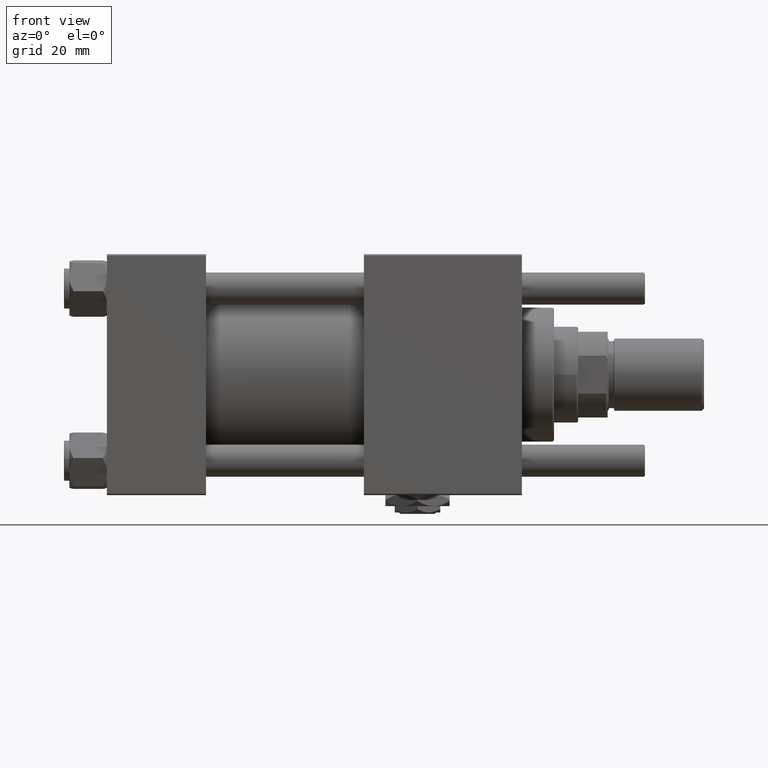
[diagram: clean part render]
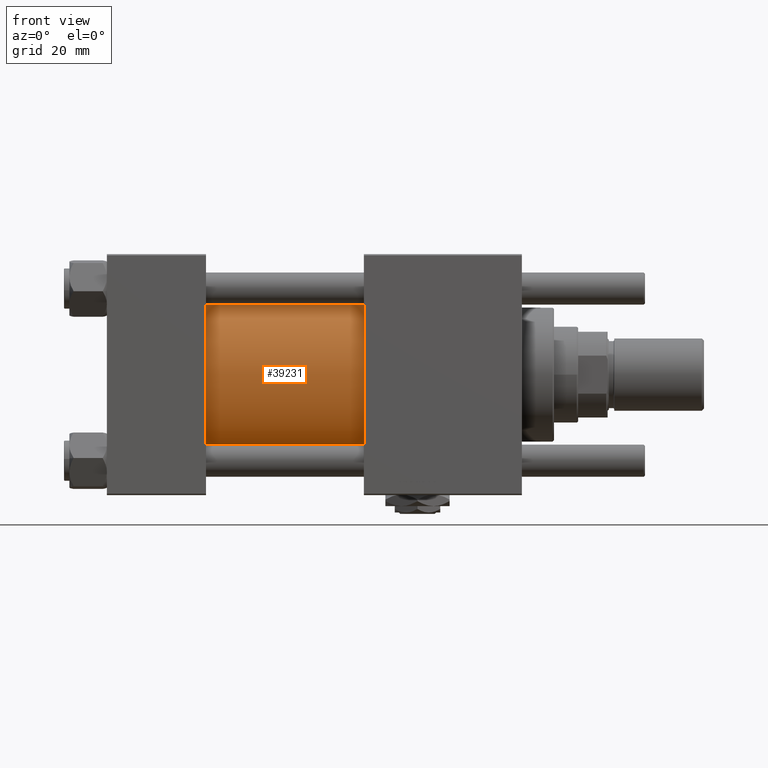
[diagram: same view with one face highlighted and labeled with its STEP entity id]
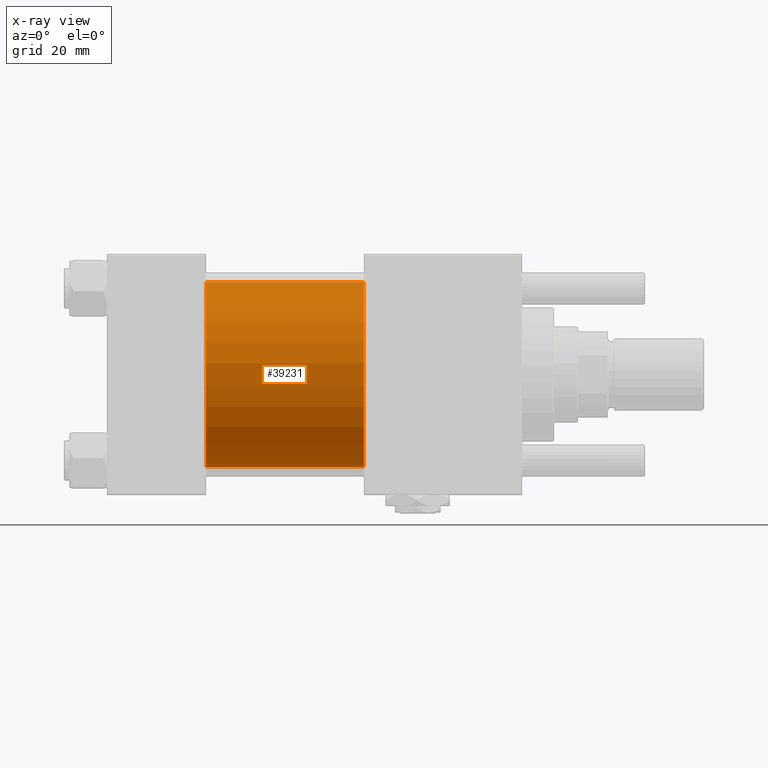
[diagram: x-ray of the same camera — body ghosted, the highlighted face saturated]
A machine part, front view. The second image highlights one B-rep face of the part: STEP entity #39231.
The next image is the same camera in x-ray: the body ghosted, the highlighted face saturated — about 3% of this face is hidden behind the body in this view.
In plain terms, the highlighted cylindrical surface (partial cylindrical patch) has radius 34.5 mm, axis along (-1, -0, -0).
Its self-contained STEP definition (entity closure, byte-faithful):
#359 = CARTESIAN_POINT ( 'NONE',  ( 96.00000000000000000, 1.622946243093158675E-15, -34.50000000000000000 ) ) ;
#611 = EDGE_CURVE ( 'NONE', #57978, #54522, #24128, .T. ) ;
#1622 = CIRCLE ( 'NONE', #35933, 34.50000000000000000 ) ;
#2655 = EDGE_LOOP ( 'NONE', ( #44652, #39168, #48136, #18923 ) ) ;
#6457 = CYLINDRICAL_SURFACE ( 'NONE', #18382, 34.50000000000000000 ) ;
#8016 = DIRECTION ( 'NONE',  ( 1.000000000000000000, -0.000000000000000000, 0.000000000000000000 ) ) ;
#9516 = CARTESIAN_POINT ( 'NONE',  ( 96.00000000000000000, 1.622946243093158675E-15, -34.50000000000000000 ) ) ;
#9990 = CARTESIAN_POINT ( 'NONE',  ( 96.00000000000000000, -2.602085213965210642E-15, 0.000000000000000000 ) ) ;
#12109 = FACE_OUTER_BOUND ( 'NONE', #2655, .T. ) ;
#16409 = EDGE_CURVE ( 'NONE', #40177, #37777, #1622, .T. ) ;
#16682 = VECTOR ( 'NONE', #37489, 1000.000000000000000 ) ;
#18382 = AXIS2_PLACEMENT_3D ( 'NONE', #42796, #43090, #57371 ) ;
#18923 = ORIENTED_EDGE ( 'NONE', *, *, #611, .T. ) ;
#19182 = VECTOR ( 'NONE', #42030, 1000.000000000000000 ) ;
#22843 = CARTESIAN_POINT ( 'NONE',  ( 37.00000000000000000, 1.622946243093158675E-15, -34.50000000000000000 ) ) ;
#23382 = DIRECTION ( 'NONE',  ( 1.000000000000000000, 0.000000000000000000, 0.000000000000000000 ) ) ;
#23680 = DIRECTION ( 'NONE',  ( 0.000000000000000000, 0.000000000000000000, -1.000000000000000000 ) ) ;
#23781 = LINE ( 'NONE', #9516, #16682 ) ;
#24128 = CIRCLE ( 'NONE', #28889, 34.50000000000000000 ) ;
#25029 = LINE ( 'NONE', #29506, #19182 ) ;
#28889 = AXIS2_PLACEMENT_3D ( 'NONE', #48817, #8016, #44355 ) ;
#29506 = CARTESIAN_POINT ( 'NONE',  ( 96.00000000000000000, -2.602085213965210642E-15, 34.50000000000000000 ) ) ;
#35096 = CARTESIAN_POINT ( 'NONE',  ( 96.00000000000000000, -2.602085213965210642E-15, 34.50000000000000000 ) ) ;
#35489 = EDGE_CURVE ( 'NONE', #40177, #57978, #25029, .T. ) ;
#35933 = AXIS2_PLACEMENT_3D ( 'NONE', #9990, #23382, #23680 ) ;
#37489 = DIRECTION ( 'NONE',  ( -1.000000000000000000, -0.000000000000000000, -0.000000000000000000 ) ) ;
#37777 = VERTEX_POINT ( 'NONE', #359 ) ;
#39168 = ORIENTED_EDGE ( 'NONE', *, *, #16409, .F. ) ;
#39231 = ADVANCED_FACE ( 'NONE', ( #12109 ), #6457, .T. ) ;
#40177 = VERTEX_POINT ( 'NONE', #35096 ) ;
#42030 = DIRECTION ( 'NONE',  ( -1.000000000000000000, -0.000000000000000000, -0.000000000000000000 ) ) ;
#42474 = CARTESIAN_POINT ( 'NONE',  ( 37.00000000000000000, -2.602085213965210642E-15, 34.50000000000000000 ) ) ;
#42796 = CARTESIAN_POINT ( 'NONE',  ( 96.00000000000000000, -2.602085213965210642E-15, 0.000000000000000000 ) ) ;
#43090 = DIRECTION ( 'NONE',  ( -1.000000000000000000, -0.000000000000000000, -0.000000000000000000 ) ) ;
#44355 = DIRECTION ( 'NONE',  ( 0.000000000000000000, 0.000000000000000000, 1.000000000000000000 ) ) ;
#44652 = ORIENTED_EDGE ( 'NONE', *, *, #45700, .F. ) ;
#45700 = EDGE_CURVE ( 'NONE', #37777, #54522, #23781, .T. ) ;
#48136 = ORIENTED_EDGE ( 'NONE', *, *, #35489, .T. ) ;
#48817 = CARTESIAN_POINT ( 'NONE',  ( 37.00000000000000000, -2.602085213965210642E-15, 0.000000000000000000 ) ) ;
#54522 = VERTEX_POINT ( 'NONE', #22843 ) ;
#57371 = DIRECTION ( 'NONE',  ( 0.000000000000000000, 0.000000000000000000, 1.000000000000000000 ) ) ;
#57978 = VERTEX_POINT ( 'NONE', #42474 ) ;